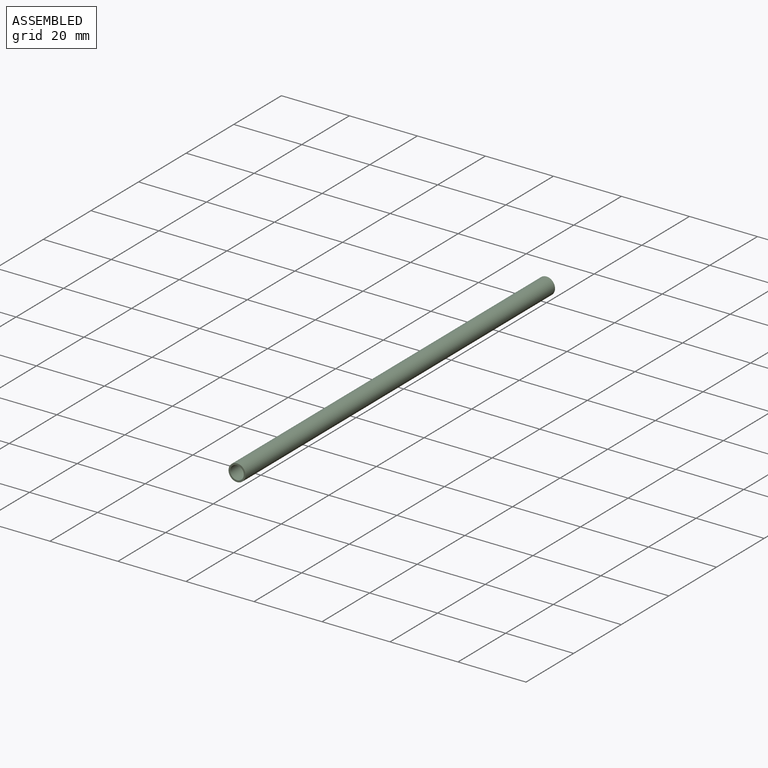
[diagram: assembled view]
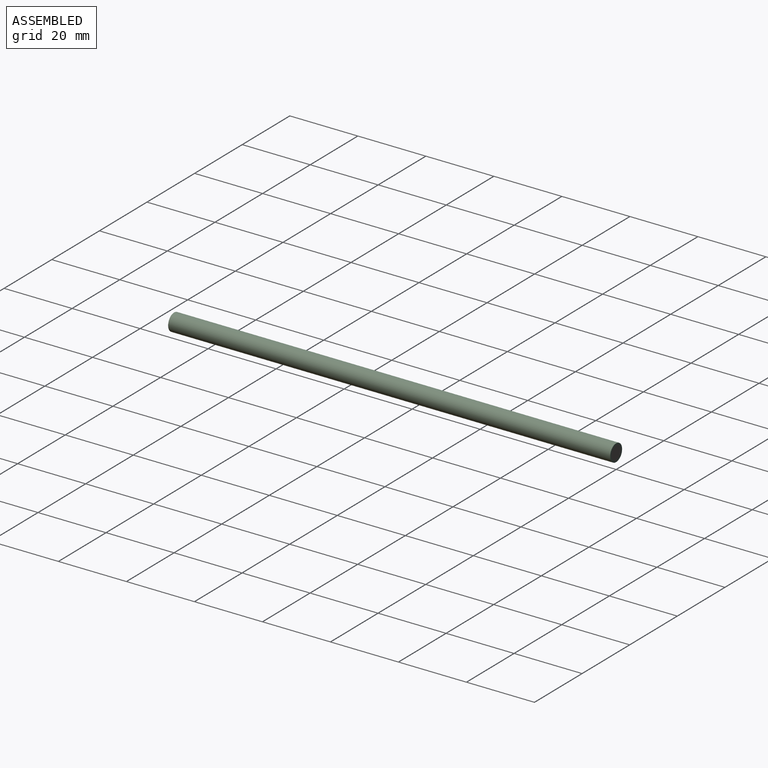
[diagram: assembled view, second angle]
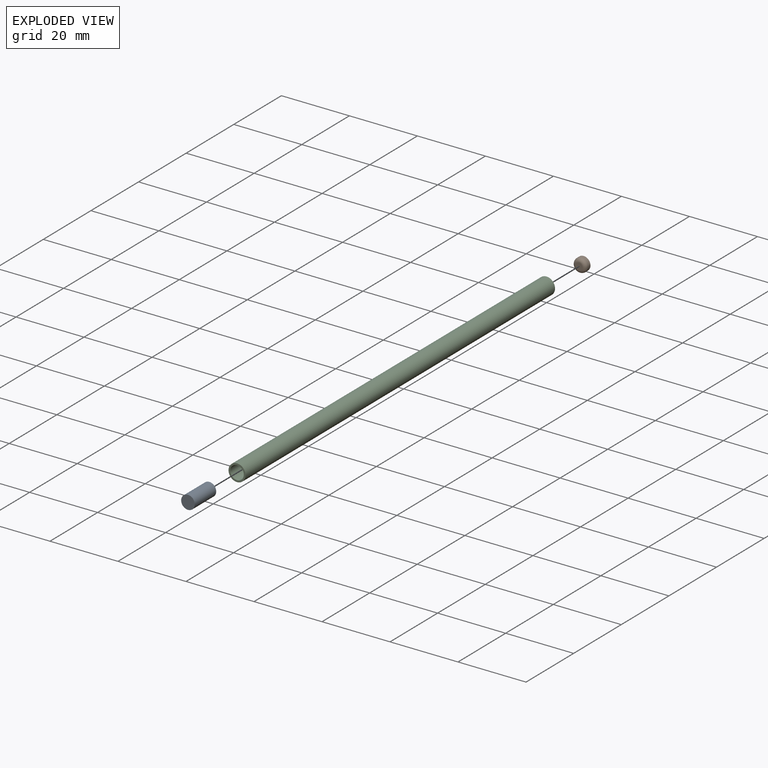
[diagram: exploded view]
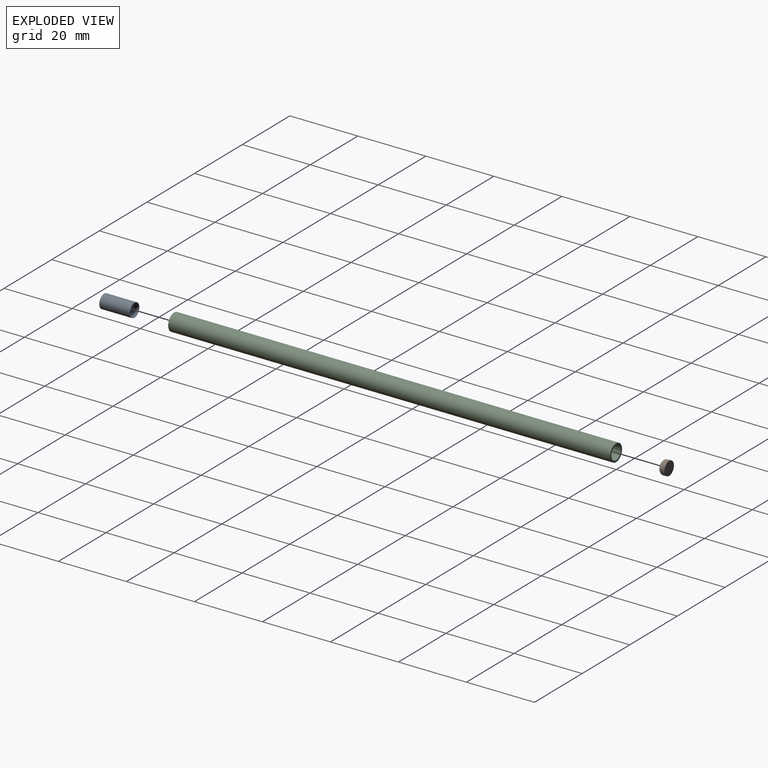
[diagram: exploded view, second angle]
ASSEMBLY  parts=3 mates=2
PART A: 4 faces, bbox 4.3x9x4.3 mm
  f0: cylinder r=2mm len=9mm, axis (0,1,0), area 113.1mm2, adj f1,f3
  f1: plane 4x4mm, normal (0,-1,0), area 12.6mm2, adj f0
  f2: plane 2x2mm, normal (0,1,0), area 3.1mm2, adj f3
  f3: torus R=1mm, axis (0,-1,0), area 16.2mm2, adj f0,f2
PART B: 4 faces, bbox 4.3x2x4.3 mm
  f0: cylinder r=2mm len=4mm, axis (0,1,0), area 12.6mm2, adj f2,f3
  f1: plane 2x2mm, normal (0,-1,0), area 3.1mm2, adj f3
  f2: plane 4x4mm, normal (0,1,0), area 12.6mm2, adj f0
  f3: torus R=1mm, axis (0,-1,0), area 16.2mm2, adj f0,f1
PART C: 4 faces, bbox 5x130x5 mm
  f0: cylinder r=2mm len=130mm, axis (0,1,0), area 1633.6mm2, adj f2,f3
  f1: cylinder r=2.5mm len=130mm, axis (0,1,0), area 2042mm2, adj f2,f3
  f2: plane 5x5mm, normal (0,-1,0), area 7.1mm2, adj f0,f1
  f3: plane 5x5mm, normal (0,1,0), area 7.1mm2, adj f0,f1
PLACE A at identity
PLACE B at identity
PLACE C at identity
MATE fastened A.f0 <-> B.f0  axis (0,1,0) through (0,-2,0)mm
MATE fastened C.f0 <-> B.f0  axis (0,1,0) through (0,0,0)mm
